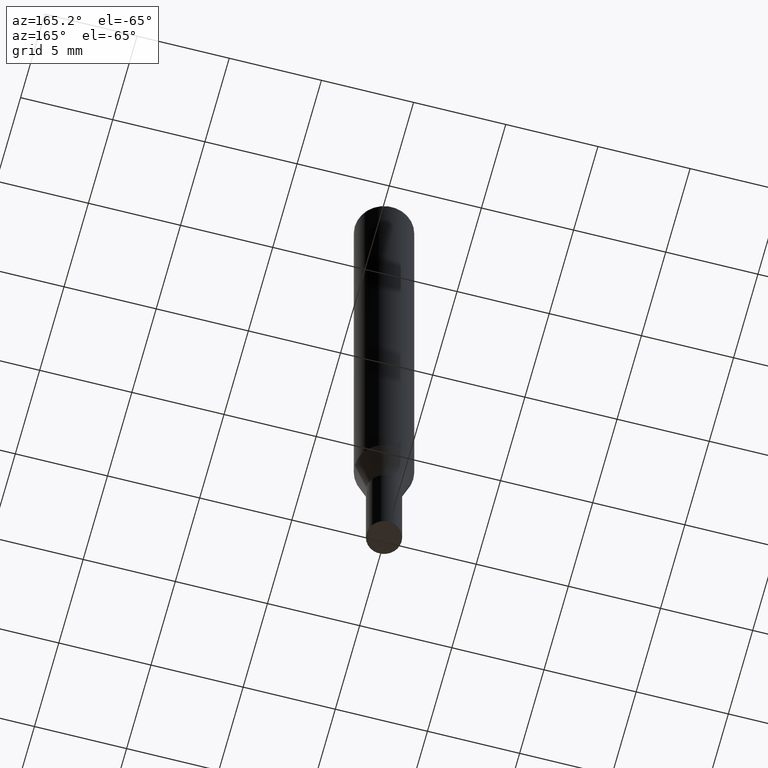
[diagram: clean part render]
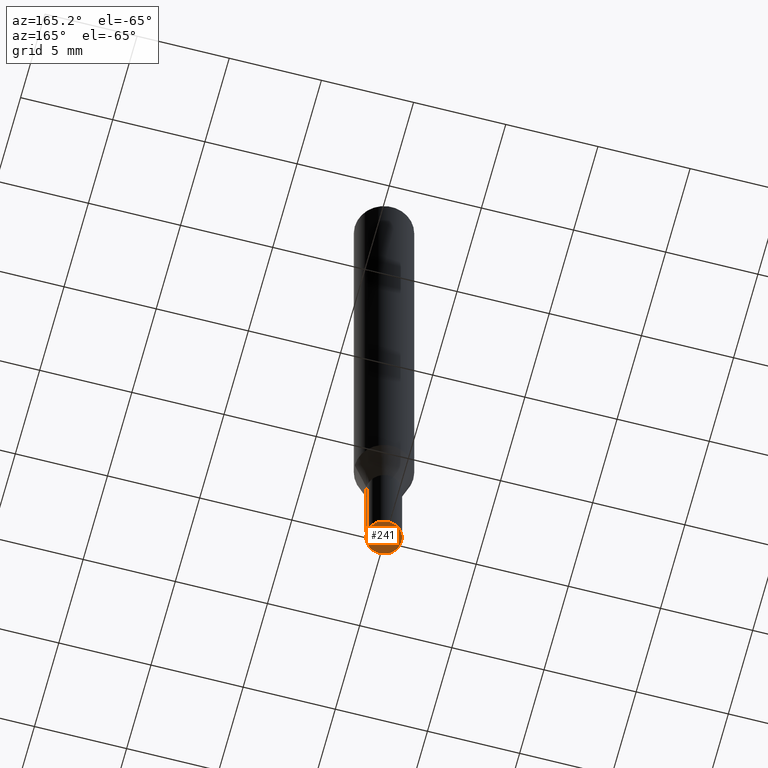
[diagram: same view with one face highlighted and labeled with its STEP entity id]
A machine part, auxiliary view. The second image highlights one B-rep face of the part: STEP entity #241.
In plain terms, the highlighted planar face has unit normal (-0, 0, 1).
Its self-contained STEP definition (entity closure, byte-faithful):
#9 = DIRECTION ( 'NONE',  ( -2.445468806185136597E-29, 3.491481338843145583E-15, 1.000000000000000000 ) ) ;
#15 = ORIENTED_EDGE ( 'NONE', *, *, #201, .F. ) ;
#17 = DIRECTION ( 'NONE',  ( 1.000000000000000000, -6.982962677686268288E-15, 0.000000000000000000 ) ) ;
#35 = AXIS2_PLACEMENT_3D ( 'NONE', #348, #9, #17 ) ;
#120 = CARTESIAN_POINT ( 'NONE',  ( 3.668203209277704895E-29, -5.237222008264718177E-15, -1.500000000000000222 ) ) ;
#123 = CARTESIAN_POINT ( 'NONE',  ( 3.576687321579069994E-29, -5.368277968210015545E-15, -1.500000000000000222 ) ) ;
#159 = FACE_OUTER_BOUND ( 'NONE', #449, .T. ) ;
#178 = CIRCLE ( 'NONE', #35, 0.03749999999999999861 ) ;
#191 = CARTESIAN_POINT ( 'NONE',  ( -0.03749999999999999861, -4.577976831734827473E-15, -1.500000000000000222 ) ) ;
#201 = EDGE_CURVE ( 'NONE', #214, #425, #178, .T. ) ;
#214 = VERTEX_POINT ( 'NONE', #191 ) ;
#226 = DIRECTION ( 'NONE',  ( 1.000000000000000000, -6.982962677686268288E-15, 0.000000000000000000 ) ) ;
#230 = DIRECTION ( 'NONE',  ( 1.000000000000000000, -6.982962677686265922E-15, 4.876176775795935793E-29 ) ) ;
#241 = ADVANCED_FACE ( 'NONE', ( #159 ), #416, .F. ) ;
#264 = DIRECTION ( 'NONE',  ( -2.445468806185136597E-29, 3.491481338843145583E-15, 1.000000000000000000 ) ) ;
#268 = DIRECTION ( 'NONE',  ( -2.438088387897960049E-29, 3.491481338843145188E-15, 1.000000000000000000 ) ) ;
#281 = EDGE_CURVE ( 'NONE', #425, #214, #407, .T. ) ;
#304 = ORIENTED_EDGE ( 'NONE', *, *, #281, .F. ) ;
#312 = AXIS2_PLACEMENT_3D ( 'NONE', #123, #268, #230 ) ;
#338 = CARTESIAN_POINT ( 'NONE',  ( 0.03749999999999999861, -5.499083108677953967E-15, -1.500000000000000222 ) ) ;
#348 = CARTESIAN_POINT ( 'NONE',  ( 3.668203209277704895E-29, -5.237222008264718177E-15, -1.500000000000000222 ) ) ;
#387 = AXIS2_PLACEMENT_3D ( 'NONE', #120, #264, #226 ) ;
#407 = CIRCLE ( 'NONE', #387, 0.03749999999999999861 ) ;
#416 = PLANE ( 'NONE',  #312 ) ;
#425 = VERTEX_POINT ( 'NONE', #338 ) ;
#449 = EDGE_LOOP ( 'NONE', ( #304, #15 ) ) ;